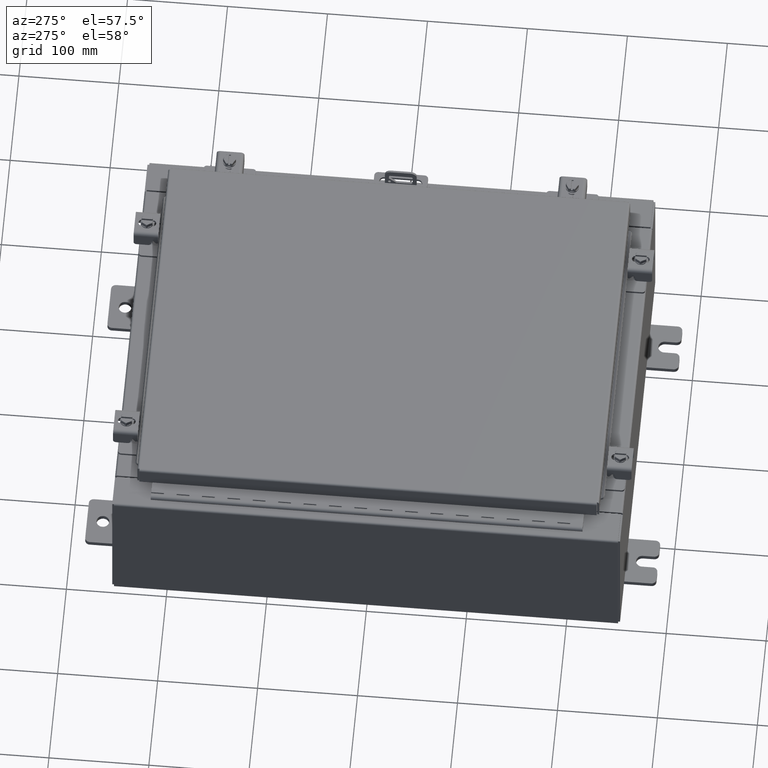
[diagram: clean part render]
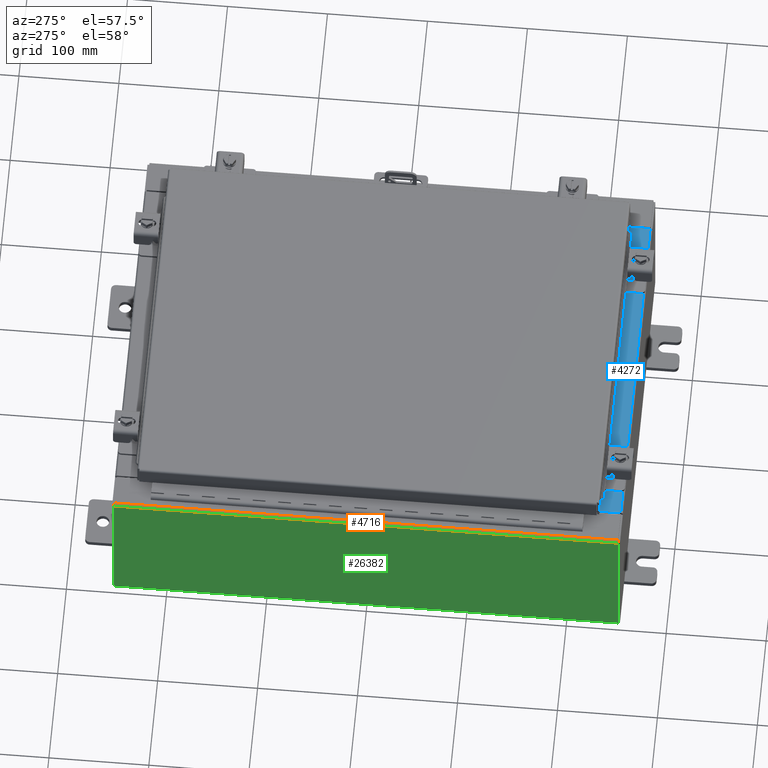
[diagram: same view with three faces highlighted in distinct colors, each labeled with its STEP entity id]
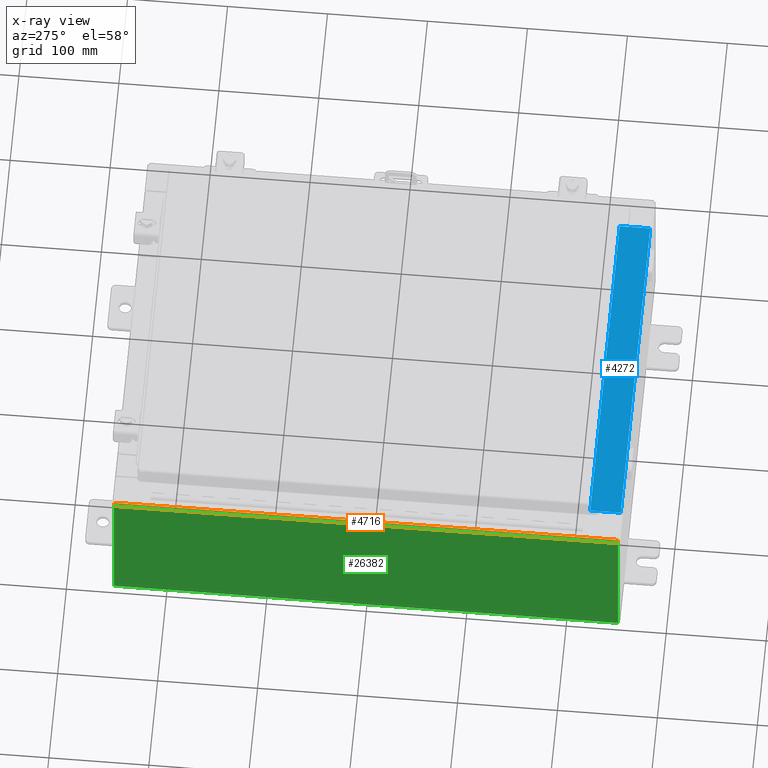
[diagram: x-ray of the same camera — body ghosted, the three highlighted faces saturated]
A machine part, auxiliary view with three faces highlighted in distinct colors.
The next image is the same camera in x-ray (body ghosted, the three faces saturated) — at least one of them is partly hidden behind the body in this view.
Their STEP definitions:

[orange] entity #4716 — the highlighted cylindrical surface (edge-blend (fillet) strip) has radius 2.2276 mm, axis along (-0, -1, -0).
#289 = AXIS2_PLACEMENT_3D ( 'NONE', #25019, #25704, #16164 ) ;
#1852 = CARTESIAN_POINT ( 'NONE',  ( -8.000000000000017800, -9.925300000000000000, 5.837599999999999200 ) ) ;
#2463 = DIRECTION ( 'NONE',  ( 0.0000000000000000000, 1.000000000000000000, 0.0000000000000000000 ) ) ;
#2620 = CARTESIAN_POINT ( 'NONE',  ( -7.912300000000017900, 9.925299999999996500, 5.925299999999999100 ) ) ;
#3165 = DIRECTION ( 'NONE',  ( 0.0000000000000000000, 1.000000000000000000, 0.0000000000000000000 ) ) ;
#4550 = AXIS2_PLACEMENT_3D ( 'NONE', #14522, #3165, #29001 ) ;
#4716 = ADVANCED_FACE ( 'NONE', ( #8114 ), #18239, .T. ) ;
#5408 = VECTOR ( 'NONE', #2463, 39.37007874015748100 ) ;
#6232 = VERTEX_POINT ( 'NONE', #24746 ) ;
#6357 = EDGE_LOOP ( 'NONE', ( #20794, #20410, #19732, #7426 ) ) ;
#7180 = VERTEX_POINT ( 'NONE', #13331 ) ;
#7426 = ORIENTED_EDGE ( 'NONE', *, *, #10792, .F. ) ;
#8114 = FACE_OUTER_BOUND ( 'NONE', #6357, .T. ) ;
#8276 = VECTOR ( 'NONE', #21663, 39.37007874015748100 ) ;
#9447 = EDGE_CURVE ( 'NONE', #6232, #22219, #27622, .T. ) ;
#10792 = EDGE_CURVE ( 'NONE', #24559, #22219, #20466, .T. ) ;
#11094 = EDGE_CURVE ( 'NONE', #6232, #7180, #16225, .T. ) ;
#12187 = AXIS2_PLACEMENT_3D ( 'NONE', #28830, #23404, #16671 ) ;
#12593 = LINE ( 'NONE', #1852, #5408 ) ;
#13331 = CARTESIAN_POINT ( 'NONE',  ( -8.000000000000017800, -9.925300000000000000, 5.837599999999999200 ) ) ;
#14522 = CARTESIAN_POINT ( 'NONE',  ( -7.912300000000017900, 9.925299999999996500, 5.837599999999999200 ) ) ;
#16164 = DIRECTION ( 'NONE',  ( -1.245996804407870000E-014, 0.0000000000000000000, 1.000000000000000000 ) ) ;
#16225 = CIRCLE ( 'NONE', #12187, 0.08770000000000026400 ) ;
#16671 = DIRECTION ( 'NONE',  ( 0.0000000000000000000, 0.0000000000000000000, -1.000000000000000000 ) ) ;
#18239 = CYLINDRICAL_SURFACE ( 'NONE', #289, 0.08770000000000026400 ) ;
#19732 = ORIENTED_EDGE ( 'NONE', *, *, #9447, .T. ) ;
#20410 = ORIENTED_EDGE ( 'NONE', *, *, #11094, .F. ) ;
#20466 = CIRCLE ( 'NONE', #4550, 0.08770000000000026400 ) ;
#20794 = ORIENTED_EDGE ( 'NONE', *, *, #22922, .F. ) ;
#21663 = DIRECTION ( 'NONE',  ( -0.0000000000000000000, 1.000000000000000000, -5.504816970095139000E-017 ) ) ;
#22219 = VERTEX_POINT ( 'NONE', #2620 ) ;
#22530 = CARTESIAN_POINT ( 'NONE',  ( -7.912300000000017900, 9.925299999999998200, 5.925299999999999100 ) ) ;
#22922 = EDGE_CURVE ( 'NONE', #7180, #24559, #12593, .T. ) ;
#23404 = DIRECTION ( 'NONE',  ( -0.0000000000000000000, -1.000000000000000000, -0.0000000000000000000 ) ) ;
#24559 = VERTEX_POINT ( 'NONE', #27651 ) ;
#24746 = CARTESIAN_POINT ( 'NONE',  ( -7.912300000000017900, -9.925299999999998200, 5.925300000000000000 ) ) ;
#25019 = CARTESIAN_POINT ( 'NONE',  ( -7.912300000000017900, -9.925300000000000000, 5.837599999999999200 ) ) ;
#25704 = DIRECTION ( 'NONE',  ( -0.0000000000000000000, -1.000000000000000000, -0.0000000000000000000 ) ) ;
#27622 = LINE ( 'NONE', #22530, #8276 ) ;
#27651 = CARTESIAN_POINT ( 'NONE',  ( -8.000000000000017800, 9.925299999999996500, 5.837599999999999200 ) ) ;
#28830 = CARTESIAN_POINT ( 'NONE',  ( -7.912300000000017900, -9.925300000000000000, 5.837599999999999200 ) ) ;
#29001 = DIRECTION ( 'NONE',  ( 0.0000000000000000000, 0.0000000000000000000, -1.000000000000000000 ) ) ;

[blue] entity #4272 — the highlighted planar face has unit normal (-0, -0, 1).
#165 = CARTESIAN_POINT ( 'NONE',  ( 6.637200000000000000, -1.300299999999999800, 3.000000000000005300 ) ) ;
#1720 = ORIENTED_EDGE ( 'NONE', *, *, #9830, .F. ) ;
#2045 = VECTOR ( 'NONE', #26202, 39.37007874015748100 ) ;
#2256 = CARTESIAN_POINT ( 'NONE',  ( 0.0000000000000000000, 1.069354855923099900E-014, 3.000000000000000900 ) ) ;
#3093 = ORIENTED_EDGE ( 'NONE', *, *, #29487, .F. ) ;
#3125 = VECTOR ( 'NONE', #15496, 39.37007874015748100 ) ;
#3219 = DIRECTION ( 'NONE',  ( 0.0000000000000000000, 3.566381192773190000E-015, 1.000000000000000000 ) ) ;
#4200 = CARTESIAN_POINT ( 'NONE',  ( -6.637200000000000000, -0.07469999999999973900, 3.000000000000000900 ) ) ;
#4272 = ADVANCED_FACE ( 'NONE', ( #13730 ), #6820, .T. ) ;
#4288 = LINE ( 'NONE', #14932, #26547 ) ;
#5237 = DIRECTION ( 'NONE',  ( -1.000000000000000000, 0.0000000000000000000, 0.0000000000000000000 ) ) ;
#6019 = DIRECTION ( 'NONE',  ( 0.0000000000000000000, -1.000000000000000000, 3.566381192773190000E-015 ) ) ;
#6671 = AXIS2_PLACEMENT_3D ( 'NONE', #2256, #3219, #6019 ) ;
#6820 = PLANE ( 'NONE',  #6671 ) ;
#6977 = LINE ( 'NONE', #4200, #3125 ) ;
#7736 = CARTESIAN_POINT ( 'NONE',  ( -6.637200000000000000, -0.08770000000000026400, 3.000000000000000900 ) ) ;
#9830 = EDGE_CURVE ( 'NONE', #17835, #26702, #15580, .T. ) ;
#11021 = CARTESIAN_POINT ( 'NONE',  ( -6.637200000000000000, -1.287299999999999200, 3.000000000000005300 ) ) ;
#13730 = FACE_OUTER_BOUND ( 'NONE', #16990, .T. ) ;
#14932 = CARTESIAN_POINT ( 'NONE',  ( 6.637200000000000900, -1.287299999999999900, 3.000000000000005300 ) ) ;
#15496 = DIRECTION ( 'NONE',  ( -0.0000000000000000000, 1.000000000000000000, -3.566381192773190000E-015 ) ) ;
#15580 = LINE ( 'NONE', #165, #2045 ) ;
#15629 = VERTEX_POINT ( 'NONE', #11021 ) ;
#15841 = LINE ( 'NONE', #22845, #23981 ) ;
#16400 = EDGE_CURVE ( 'NONE', #17835, #18774, #15841, .T. ) ;
#16649 = ORIENTED_EDGE ( 'NONE', *, *, #20197, .F. ) ;
#16990 = EDGE_LOOP ( 'NONE', ( #3093, #16649, #1720, #19398 ) ) ;
#17835 = VERTEX_POINT ( 'NONE', #26750 ) ;
#18774 = VERTEX_POINT ( 'NONE', #7736 ) ;
#19312 = DIRECTION ( 'NONE',  ( -1.000000000000000000, 0.0000000000000000000, 0.0000000000000000000 ) ) ;
#19398 = ORIENTED_EDGE ( 'NONE', *, *, #16400, .T. ) ;
#20197 = EDGE_CURVE ( 'NONE', #26702, #15629, #4288, .T. ) ;
#21519 = CARTESIAN_POINT ( 'NONE',  ( 6.637200000000000000, -1.287299999999999900, 3.000000000000005300 ) ) ;
#22845 = CARTESIAN_POINT ( 'NONE',  ( 0.0000000000000000000, -0.08770000000000026400, 3.000000000000001300 ) ) ;
#23981 = VECTOR ( 'NONE', #19312, 39.37007874015748100 ) ;
#26202 = DIRECTION ( 'NONE',  ( -0.0000000000000000000, -1.000000000000000000, 3.566381192773190000E-015 ) ) ;
#26547 = VECTOR ( 'NONE', #5237, 39.37007874015748100 ) ;
#26702 = VERTEX_POINT ( 'NONE', #21519 ) ;
#26750 = CARTESIAN_POINT ( 'NONE',  ( 6.637199999999999100, -0.08769999999999993100, 3.000000000000000900 ) ) ;
#29487 = EDGE_CURVE ( 'NONE', #15629, #18774, #6977, .T. ) ;

[green] entity #26382 — the highlighted planar face has unit normal (1, 0, 0).
#461 = LINE ( 'NONE', #28958, #23023 ) ;
#1051 = FACE_OUTER_BOUND ( 'NONE', #27039, .T. ) ;
#1852 = CARTESIAN_POINT ( 'NONE',  ( -8.000000000000017800, -9.925300000000000000, 5.837599999999999200 ) ) ;
#2463 = DIRECTION ( 'NONE',  ( 0.0000000000000000000, 1.000000000000000000, 0.0000000000000000000 ) ) ;
#3305 = VERTEX_POINT ( 'NONE', #26335 ) ;
#5408 = VECTOR ( 'NONE', #2463, 39.37007874015748100 ) ;
#6136 = EDGE_CURVE ( 'NONE', #24559, #23946, #25856, .T. ) ;
#7180 = VERTEX_POINT ( 'NONE', #13331 ) ;
#7259 = VECTOR ( 'NONE', #24105, 39.37007874015748100 ) ;
#7468 = CARTESIAN_POINT ( 'NONE',  ( -7.999999999999997300, 9.925299999999998200, 0.01299999999999984500 ) ) ;
#8186 = CARTESIAN_POINT ( 'NONE',  ( -7.999999999999997300, -9.925300000000001800, -2.829253492156558900E-014 ) ) ;
#8302 = LINE ( 'NONE', #8186, #14521 ) ;
#9171 = EDGE_CURVE ( 'NONE', #3305, #23946, #461, .T. ) ;
#9216 = DIRECTION ( 'NONE',  ( -3.503965158194252100E-015, 0.0000000000000000000, 1.000000000000000000 ) ) ;
#12593 = LINE ( 'NONE', #1852, #5408 ) ;
#12854 = AXIS2_PLACEMENT_3D ( 'NONE', #29739, #13754, #18603 ) ;
#13331 = CARTESIAN_POINT ( 'NONE',  ( -8.000000000000017800, -9.925300000000000000, 5.837599999999999200 ) ) ;
#13395 = ORIENTED_EDGE ( 'NONE', *, *, #6136, .T. ) ;
#13754 = DIRECTION ( 'NONE',  ( 1.000000000000000000, 0.0000000000000000000, 3.503965158194251300E-015 ) ) ;
#14521 = VECTOR ( 'NONE', #9216, 39.37007874015748100 ) ;
#15107 = CARTESIAN_POINT ( 'NONE',  ( -7.999999999999997300, 9.925299999999998200, -2.829253492156558900E-014 ) ) ;
#15645 = ORIENTED_EDGE ( 'NONE', *, *, #23087, .T. ) ;
#18603 = DIRECTION ( 'NONE',  ( 3.503965158194251300E-015, 0.0000000000000000000, -1.000000000000000000 ) ) ;
#21878 = ORIENTED_EDGE ( 'NONE', *, *, #22922, .T. ) ;
#22922 = EDGE_CURVE ( 'NONE', #7180, #24559, #12593, .T. ) ;
#23023 = VECTOR ( 'NONE', #28953, 39.37007874015748100 ) ;
#23079 = PLANE ( 'NONE',  #12854 ) ;
#23087 = EDGE_CURVE ( 'NONE', #3305, #7180, #8302, .T. ) ;
#23946 = VERTEX_POINT ( 'NONE', #7468 ) ;
#24105 = DIRECTION ( 'NONE',  ( 3.503965158194252100E-015, 0.0000000000000000000, -1.000000000000000000 ) ) ;
#24559 = VERTEX_POINT ( 'NONE', #27651 ) ;
#25856 = LINE ( 'NONE', #15107, #7259 ) ;
#26335 = CARTESIAN_POINT ( 'NONE',  ( -7.999999999999997300, -9.925300000000000000, 0.01299999999999984700 ) ) ;
#26382 = ADVANCED_FACE ( 'NONE', ( #1051 ), #23079, .F. ) ;
#27039 = EDGE_LOOP ( 'NONE', ( #21878, #13395, #28749, #15645 ) ) ;
#27651 = CARTESIAN_POINT ( 'NONE',  ( -8.000000000000017800, 9.925299999999996500, 5.837599999999999200 ) ) ;
#28749 = ORIENTED_EDGE ( 'NONE', *, *, #9171, .F. ) ;
#28953 = DIRECTION ( 'NONE',  ( -0.0000000000000000000, 1.000000000000000000, -0.0000000000000000000 ) ) ;
#28958 = CARTESIAN_POINT ( 'NONE',  ( -7.999999999999997300, 9.925299999999998200, 0.01299999999999984700 ) ) ;
#29739 = CARTESIAN_POINT ( 'NONE',  ( -7.999999999999997300, 0.0000000000000000000, -2.829253492156558900E-014 ) ) ;